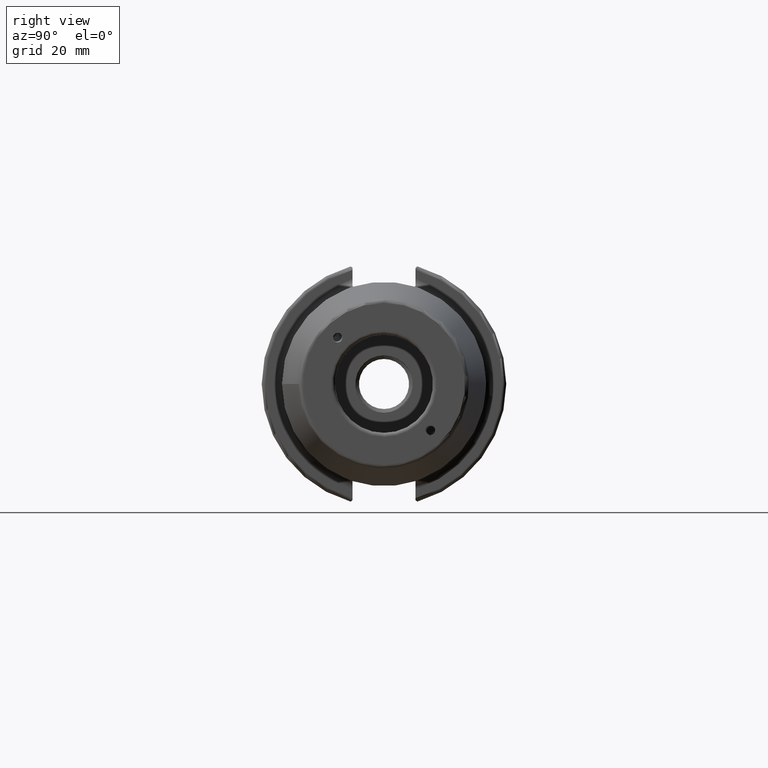
[diagram: clean part render]
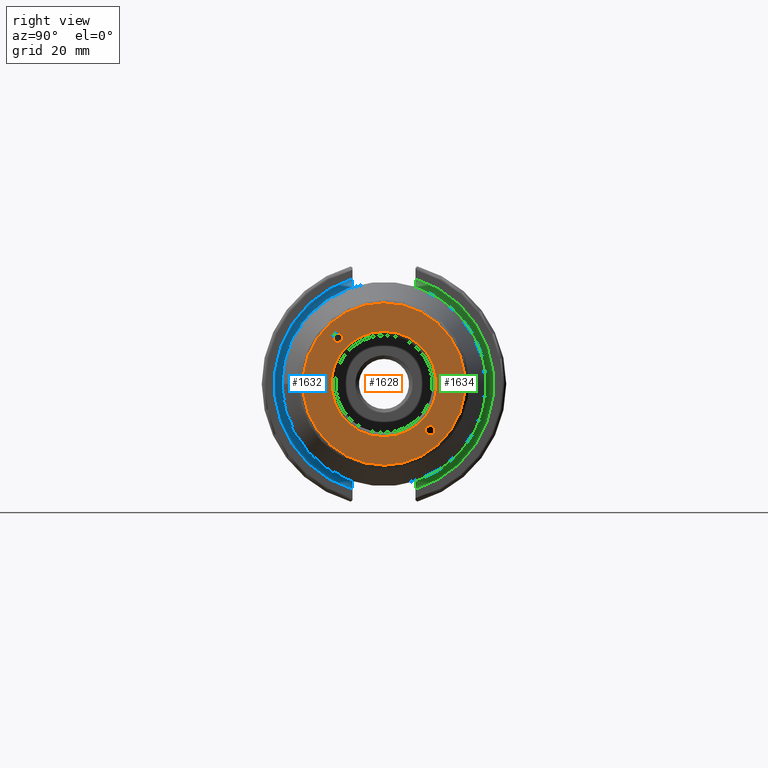
[diagram: same view with three faces highlighted in distinct colors, each labeled with its STEP entity id]
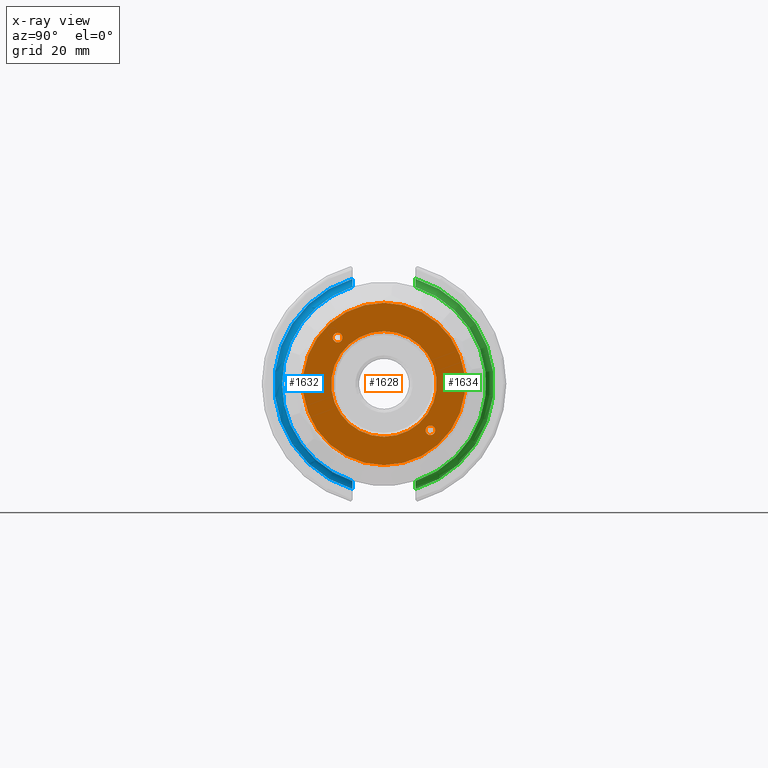
[diagram: x-ray of the same camera — body ghosted, the three highlighted faces saturated]
A machine part, right view with three faces highlighted in distinct colors.
The next image is the same camera in x-ray (body ghosted, the three faces saturated) — at least one of them is partly hidden behind the body in this view.
Their STEP definitions:

[orange] entity #1628 — the highlighted planar face has unit normal (1, 0, 0).
#315=FACE_BOUND('',#492,.T.);
#316=FACE_BOUND('',#493,.T.);
#317=FACE_BOUND('',#494,.T.);
#332=ELLIPSE('',#1753,1.25076193037353,1.25);
#333=ELLIPSE('',#1754,1.25076193037353,1.25);
#352=PLANE('',#1751);
#395=FACE_OUTER_BOUND('',#491,.T.);
#491=EDGE_LOOP('',(#1112));
#492=EDGE_LOOP('',(#1113));
#493=EDGE_LOOP('',(#1114));
#494=EDGE_LOOP('',(#1115));
#603=CIRCLE('',#1747,13.7);
#607=CIRCLE('',#1752,21.0756095083418);
#684=VERTEX_POINT('',#2443);
#687=VERTEX_POINT('',#2451);
#688=VERTEX_POINT('',#2453);
#689=VERTEX_POINT('',#2455);
#852=EDGE_CURVE('',#684,#684,#603,.T.);
#856=EDGE_CURVE('',#687,#687,#607,.T.);
#857=EDGE_CURVE('',#688,#688,#332,.T.);
#858=EDGE_CURVE('',#689,#689,#333,.T.);
#1112=ORIENTED_EDGE('',*,*,#856,.F.);
#1113=ORIENTED_EDGE('',*,*,#857,.T.);
#1114=ORIENTED_EDGE('',*,*,#858,.T.);
#1115=ORIENTED_EDGE('',*,*,#852,.F.);
#1628=ADVANCED_FACE('',(#395,#315,#316,#317),#352,.T.);
#1747=AXIS2_PLACEMENT_3D('',#2444,#1947,#1948);
#1751=AXIS2_PLACEMENT_3D('',#2450,#1955,#1956);
#1752=AXIS2_PLACEMENT_3D('',#2452,#1957,#1958);
#1753=AXIS2_PLACEMENT_3D('',#2454,#1959,#1960);
#1754=AXIS2_PLACEMENT_3D('',#2456,#1961,#1962);
#1947=DIRECTION('center_axis',(1.,0.,0.));
#1948=DIRECTION('ref_axis',(0.,-1.22464679914735E-16,1.));
#1955=DIRECTION('center_axis',(1.,0.,0.));
#1956=DIRECTION('ref_axis',(0.,0.,-1.));
#1957=DIRECTION('center_axis',(-1.,0.,0.));
#1958=DIRECTION('ref_axis',(0.,-1.,1.83697019872103E-16));
#1959=DIRECTION('center_axis',(-1.,0.,0.));
#1960=DIRECTION('ref_axis',(0.,-0.707106781186413,0.707106781186682));
#1961=DIRECTION('center_axis',(-1.,0.,0.));
#1962=DIRECTION('ref_axis',(0.,0.707106781186413,-0.707106781186682));
#2443=CARTESIAN_POINT('',(100.,3.35553222966375E-15,-13.7));
#2444=CARTESIAN_POINT('Origin',(100.,0.,0.));
#2450=CARTESIAN_POINT('Origin',(100.,0.,0.));
#2451=CARTESIAN_POINT('',(100.,-2.58101777244703E-15,21.0756095083418));
#2452=CARTESIAN_POINT('Origin',(100.,0.,0.));
#2453=CARTESIAN_POINT('',(100.,-10.7704342569484,12.0200533498331));
#2454=CARTESIAN_POINT('Origin',(100.,-12.0208152801713,12.0208152801713));
#2455=CARTESIAN_POINT('',(100.,10.7704342569484,-12.0200533498331));
#2456=CARTESIAN_POINT('Origin',(100.,12.0208152801713,-12.0208152801713));

[blue] entity #1632 — the highlighted toroidal blend (fillet) surface has major radius 28.5 mm and minor (blend) radius 2 mm.
#31=B_SPLINE_CURVE_WITH_KNOTS('',3,(#2474,#2475,#2476,#2477,#2478,#2479,
#2480,#2481),.UNSPECIFIED.,.F.,.F.,(4,2,2,4),(0.707811164416563,0.753289050617111,
0.830261667572551,0.908757487348896),.UNSPECIFIED.);
#32=B_SPLINE_CURVE_WITH_KNOTS('',3,(#2485,#2486,#2487,#2488,#2489,#2490,
#2491,#2492,#2493,#2494),.UNSPECIFIED.,.F.,.F.,(4,2,2,2,4),(0.30235413598056,
0.380849955756906,0.457822572712345,0.532639529571725,0.605555811664728),
 .UNSPECIFIED.);
#33=B_SPLINE_CURVE_WITH_KNOTS('',3,(#2499,#2500,#2501,#2502,#2503,#2504),
 .UNSPECIFIED.,.F.,.F.,(4,2,4),(0.624753278714346,0.696114342535262,0.727749222019325),
 .UNSPECIFIED.);
#399=FACE_OUTER_BOUND('',#498,.T.);
#498=EDGE_LOOP('',(#1131,#1132,#1133,#1134,#1135,#1136));
#613=CIRCLE('',#1764,28.5);
#614=CIRCLE('',#1765,26.5);
#615=CIRCLE('',#1766,26.5);
#694=VERTEX_POINT('',#2472);
#695=VERTEX_POINT('',#2473);
#696=VERTEX_POINT('',#2482);
#697=VERTEX_POINT('',#2484);
#698=VERTEX_POINT('',#2495);
#699=VERTEX_POINT('',#2497);
#866=EDGE_CURVE('',#694,#695,#31,.T.);
#867=EDGE_CURVE('',#695,#696,#613,.T.);
#868=EDGE_CURVE('',#697,#696,#32,.F.);
#869=EDGE_CURVE('',#697,#698,#614,.T.);
#870=EDGE_CURVE('',#698,#699,#615,.T.);
#871=EDGE_CURVE('',#699,#694,#33,.T.);
#1131=ORIENTED_EDGE('',*,*,#866,.T.);
#1132=ORIENTED_EDGE('',*,*,#867,.T.);
#1133=ORIENTED_EDGE('',*,*,#868,.F.);
#1134=ORIENTED_EDGE('',*,*,#869,.T.);
#1135=ORIENTED_EDGE('',*,*,#870,.T.);
#1136=ORIENTED_EDGE('',*,*,#871,.T.);
#1619=TOROIDAL_SURFACE('',#1763,28.5,2.);
#1632=ADVANCED_FACE('',(#399),#1619,.F.);
#1763=AXIS2_PLACEMENT_3D('',#2471,#1981,#1982);
#1764=AXIS2_PLACEMENT_3D('',#2483,#1983,#1984);
#1765=AXIS2_PLACEMENT_3D('',#2496,#1985,#1986);
#1766=AXIS2_PLACEMENT_3D('',#2498,#1987,#1988);
#1981=DIRECTION('center_axis',(-1.,0.,0.));
#1982=DIRECTION('ref_axis',(0.,0.,1.));
#1983=DIRECTION('center_axis',(1.,0.,0.));
#1984=DIRECTION('ref_axis',(0.,-0.999990043367962,0.00446241693951007));
#1985=DIRECTION('center_axis',(-1.,0.,0.));
#1986=DIRECTION('ref_axis',(0.,-0.999990043367962,0.00446241693951007));
#1987=DIRECTION('center_axis',(-1.,0.,0.));
#1988=DIRECTION('ref_axis',(0.,-0.999990043367962,0.00446241693951007));
#2471=CARTESIAN_POINT('Origin',(21.05,0.,0.));
#2472=CARTESIAN_POINT('',(20.0244662958217,-8.19000000000165,25.5000000000049));
#2473=CARTESIAN_POINT('',(19.05,-8.19,27.2978735435565));
#2474=CARTESIAN_POINT('Ctrl Pts',(20.0244662958232,-8.19,25.5000000000057));
#2475=CARTESIAN_POINT('Ctrl Pts',(19.8850320103989,-8.19,25.5874688145189));
#2476=CARTESIAN_POINT('Ctrl Pts',(19.7543453755304,-8.19,25.695636986831));
#2477=CARTESIAN_POINT('Ctrl Pts',(19.4700477206645,-8.19,25.9885127973065));
#2478=CARTESIAN_POINT('Ctrl Pts',(19.3031737487845,-8.19,26.2472590391816));
#2479=CARTESIAN_POINT('Ctrl Pts',(19.1094531968333,-8.19,26.7279176858725));
#2480=CARTESIAN_POINT('Ctrl Pts',(19.05,-8.19,27.0362208109687));
#2481=CARTESIAN_POINT('Ctrl Pts',(19.05,-8.19,27.2978735435565));
#2482=CARTESIAN_POINT('',(19.05,-8.19,-27.2978735435565));
#2483=CARTESIAN_POINT('Origin',(19.05,0.,0.));
#2484=CARTESIAN_POINT('',(21.05,-8.19,-25.2026566060009));
#2485=CARTESIAN_POINT('Ctrl Pts',(19.05,-8.19,-27.2978735435565));
#2486=CARTESIAN_POINT('Ctrl Pts',(19.05,-8.19,-27.0362208109687));
#2487=CARTESIAN_POINT('Ctrl Pts',(19.1094531968333,-8.19,-26.7279176858725));
#2488=CARTESIAN_POINT('Ctrl Pts',(19.3031737487845,-8.19,-26.2472590391816));
#2489=CARTESIAN_POINT('Ctrl Pts',(19.4700477206645,-8.19,-25.9885127973065));
#2490=CARTESIAN_POINT('Ctrl Pts',(19.8224629313532,-8.19,-25.6254641098208));
#2491=CARTESIAN_POINT('Ctrl Pts',(20.0683591355164,-8.19,-25.4548877652789));
#2492=CARTESIAN_POINT('Ctrl Pts',(20.5213123521069,-8.19,-25.2616661189876));
#2493=CARTESIAN_POINT('Ctrl Pts',(20.8069457263567,-8.19,-25.2026566060009));
#2494=CARTESIAN_POINT('Ctrl Pts',(21.05,-8.19,-25.2026566060009));
#2495=CARTESIAN_POINT('',(21.05,-26.5,-3.24531401774049E-15));
#2496=CARTESIAN_POINT('Origin',(21.05,0.,0.));
#2497=CARTESIAN_POINT('',(21.05,-7.96474653838019,25.2747465383802));
#2498=CARTESIAN_POINT('Origin',(21.05,0.,0.));
#2499=CARTESIAN_POINT('Ctrl Pts',(21.05,-7.96474653838018,25.2747465383802));
#2500=CARTESIAN_POINT('Ctrl Pts',(20.8121297872636,-7.96474653838018,25.2747465383802));
#2501=CARTESIAN_POINT('Ctrl Pts',(20.5332195425841,-8.00768543850151,25.3176854385015));
#2502=CARTESIAN_POINT('Ctrl Pts',(20.2194736986784,-8.10625530729613,25.4162553072961));
#2503=CARTESIAN_POINT('Ctrl Pts',(20.1196369839186,-8.14481169578237,25.4548116957824));
#2504=CARTESIAN_POINT('Ctrl Pts',(20.0244662958232,-8.19000000000429,25.5000000000043));

[green] entity #1634 — the highlighted toroidal blend (fillet) surface has major radius 28.5 mm and minor (blend) radius 2 mm.
#34=B_SPLINE_CURVE_WITH_KNOTS('',3,(#2522,#2523,#2524,#2525,#2526,#2527,
#2528,#2529,#2530,#2531),.UNSPECIFIED.,.F.,.F.,(4,2,2,2,4),(0.605555811664728,
0.678472093757732,0.753289050617111,0.830261667572551,0.908757487348896),
 .UNSPECIFIED.);
#35=B_SPLINE_CURVE_WITH_KNOTS('',3,(#2535,#2536,#2537,#2538,#2539,#2540,
#2541,#2542),.UNSPECIFIED.,.F.,.F.,(4,2,2,4),(0.30235413598056,0.380849955756906,
0.457822572712346,0.503300458912894),.UNSPECIFIED.);
#36=B_SPLINE_CURVE_WITH_KNOTS('',3,(#2543,#2544,#2545,#2546,#2547,#2548),
 .UNSPECIFIED.,.F.,.F.,(4,2,4),(0.521757335409368,0.553392214893431,0.624753278714346),
 .UNSPECIFIED.);
#401=FACE_OUTER_BOUND('',#500,.T.);
#500=EDGE_LOOP('',(#1149,#1150,#1151,#1152,#1153));
#617=CIRCLE('',#1769,26.5);
#619=CIRCLE('',#1772,28.5);
#702=VERTEX_POINT('',#2511);
#703=VERTEX_POINT('',#2513);
#706=VERTEX_POINT('',#2521);
#707=VERTEX_POINT('',#2532);
#708=VERTEX_POINT('',#2534);
#876=EDGE_CURVE('',#703,#702,#617,.T.);
#880=EDGE_CURVE('',#702,#706,#34,.T.);
#881=EDGE_CURVE('',#706,#707,#619,.T.);
#882=EDGE_CURVE('',#708,#707,#35,.F.);
#883=EDGE_CURVE('',#703,#708,#36,.F.);
#1149=ORIENTED_EDGE('',*,*,#880,.T.);
#1150=ORIENTED_EDGE('',*,*,#881,.T.);
#1151=ORIENTED_EDGE('',*,*,#882,.F.);
#1152=ORIENTED_EDGE('',*,*,#883,.F.);
#1153=ORIENTED_EDGE('',*,*,#876,.T.);
#1620=TOROIDAL_SURFACE('',#1771,28.5,2.);
#1634=ADVANCED_FACE('',(#401),#1620,.F.);
#1769=AXIS2_PLACEMENT_3D('',#2514,#1996,#1997);
#1771=AXIS2_PLACEMENT_3D('',#2520,#2002,#2003);
#1772=AXIS2_PLACEMENT_3D('',#2533,#2004,#2005);
#1996=DIRECTION('center_axis',(-1.,0.,0.));
#1997=DIRECTION('ref_axis',(0.,0.999990043367962,0.00446241693951042));
#2002=DIRECTION('center_axis',(-1.,0.,0.));
#2003=DIRECTION('ref_axis',(0.,0.,1.));
#2004=DIRECTION('center_axis',(1.,0.,0.));
#2005=DIRECTION('ref_axis',(0.,0.999990043367962,0.00446241693951042));
#2511=CARTESIAN_POINT('',(21.05,8.19,-25.2026566060009));
#2513=CARTESIAN_POINT('',(21.05,7.96474653838018,25.2747465383802));
#2514=CARTESIAN_POINT('Origin',(21.05,0.,0.));
#2520=CARTESIAN_POINT('Origin',(21.05,0.,0.));
#2521=CARTESIAN_POINT('',(19.05,8.19,-27.2978735435565));
#2522=CARTESIAN_POINT('Ctrl Pts',(21.05,8.19,-25.2026566060009));
#2523=CARTESIAN_POINT('Ctrl Pts',(20.8069457263567,8.19,-25.2026566060009));
#2524=CARTESIAN_POINT('Ctrl Pts',(20.5213123521069,8.19,-25.2616661189876));
#2525=CARTESIAN_POINT('Ctrl Pts',(20.0683591355164,8.19,-25.4548877652789));
#2526=CARTESIAN_POINT('Ctrl Pts',(19.8224629313532,8.19,-25.6254641098208));
#2527=CARTESIAN_POINT('Ctrl Pts',(19.4700477206645,8.19,-25.9885127973065));
#2528=CARTESIAN_POINT('Ctrl Pts',(19.3031737487845,8.19,-26.2472590391816));
#2529=CARTESIAN_POINT('Ctrl Pts',(19.1094531968333,8.19,-26.7279176858725));
#2530=CARTESIAN_POINT('Ctrl Pts',(19.05,8.19,-27.0362208109687));
#2531=CARTESIAN_POINT('Ctrl Pts',(19.05,8.19,-27.2978735435565));
#2532=CARTESIAN_POINT('',(19.05,8.19,27.2978735435565));
#2533=CARTESIAN_POINT('Origin',(19.05,0.,0.));
#2534=CARTESIAN_POINT('',(20.0244662958217,8.19000000000165,25.5000000000049));
#2535=CARTESIAN_POINT('Ctrl Pts',(19.05,8.19,27.2978735435565));
#2536=CARTESIAN_POINT('Ctrl Pts',(19.05,8.19,27.0362208109687));
#2537=CARTESIAN_POINT('Ctrl Pts',(19.1094531968333,8.19,26.7279176858725));
#2538=CARTESIAN_POINT('Ctrl Pts',(19.3031737487845,8.19,26.2472590391816));
#2539=CARTESIAN_POINT('Ctrl Pts',(19.4700477206645,8.19,25.9885127973065));
#2540=CARTESIAN_POINT('Ctrl Pts',(19.7543453755304,8.19,25.695636986831));
#2541=CARTESIAN_POINT('Ctrl Pts',(19.8850320103989,8.19,25.5874688145189));
#2542=CARTESIAN_POINT('Ctrl Pts',(20.0244662958232,8.19,25.5000000000057));
#2543=CARTESIAN_POINT('Ctrl Pts',(20.0244662958232,8.19000000000429,25.5000000000043));
#2544=CARTESIAN_POINT('Ctrl Pts',(20.1196369839186,8.14481169578237,25.4548116957824));
#2545=CARTESIAN_POINT('Ctrl Pts',(20.2194736986784,8.10625530729613,25.4162553072961));
#2546=CARTESIAN_POINT('Ctrl Pts',(20.5332195425841,8.00768543850151,25.3176854385015));
#2547=CARTESIAN_POINT('Ctrl Pts',(20.8121297872636,7.96474653838018,25.2747465383802));
#2548=CARTESIAN_POINT('Ctrl Pts',(21.05,7.96474653838018,25.2747465383802));